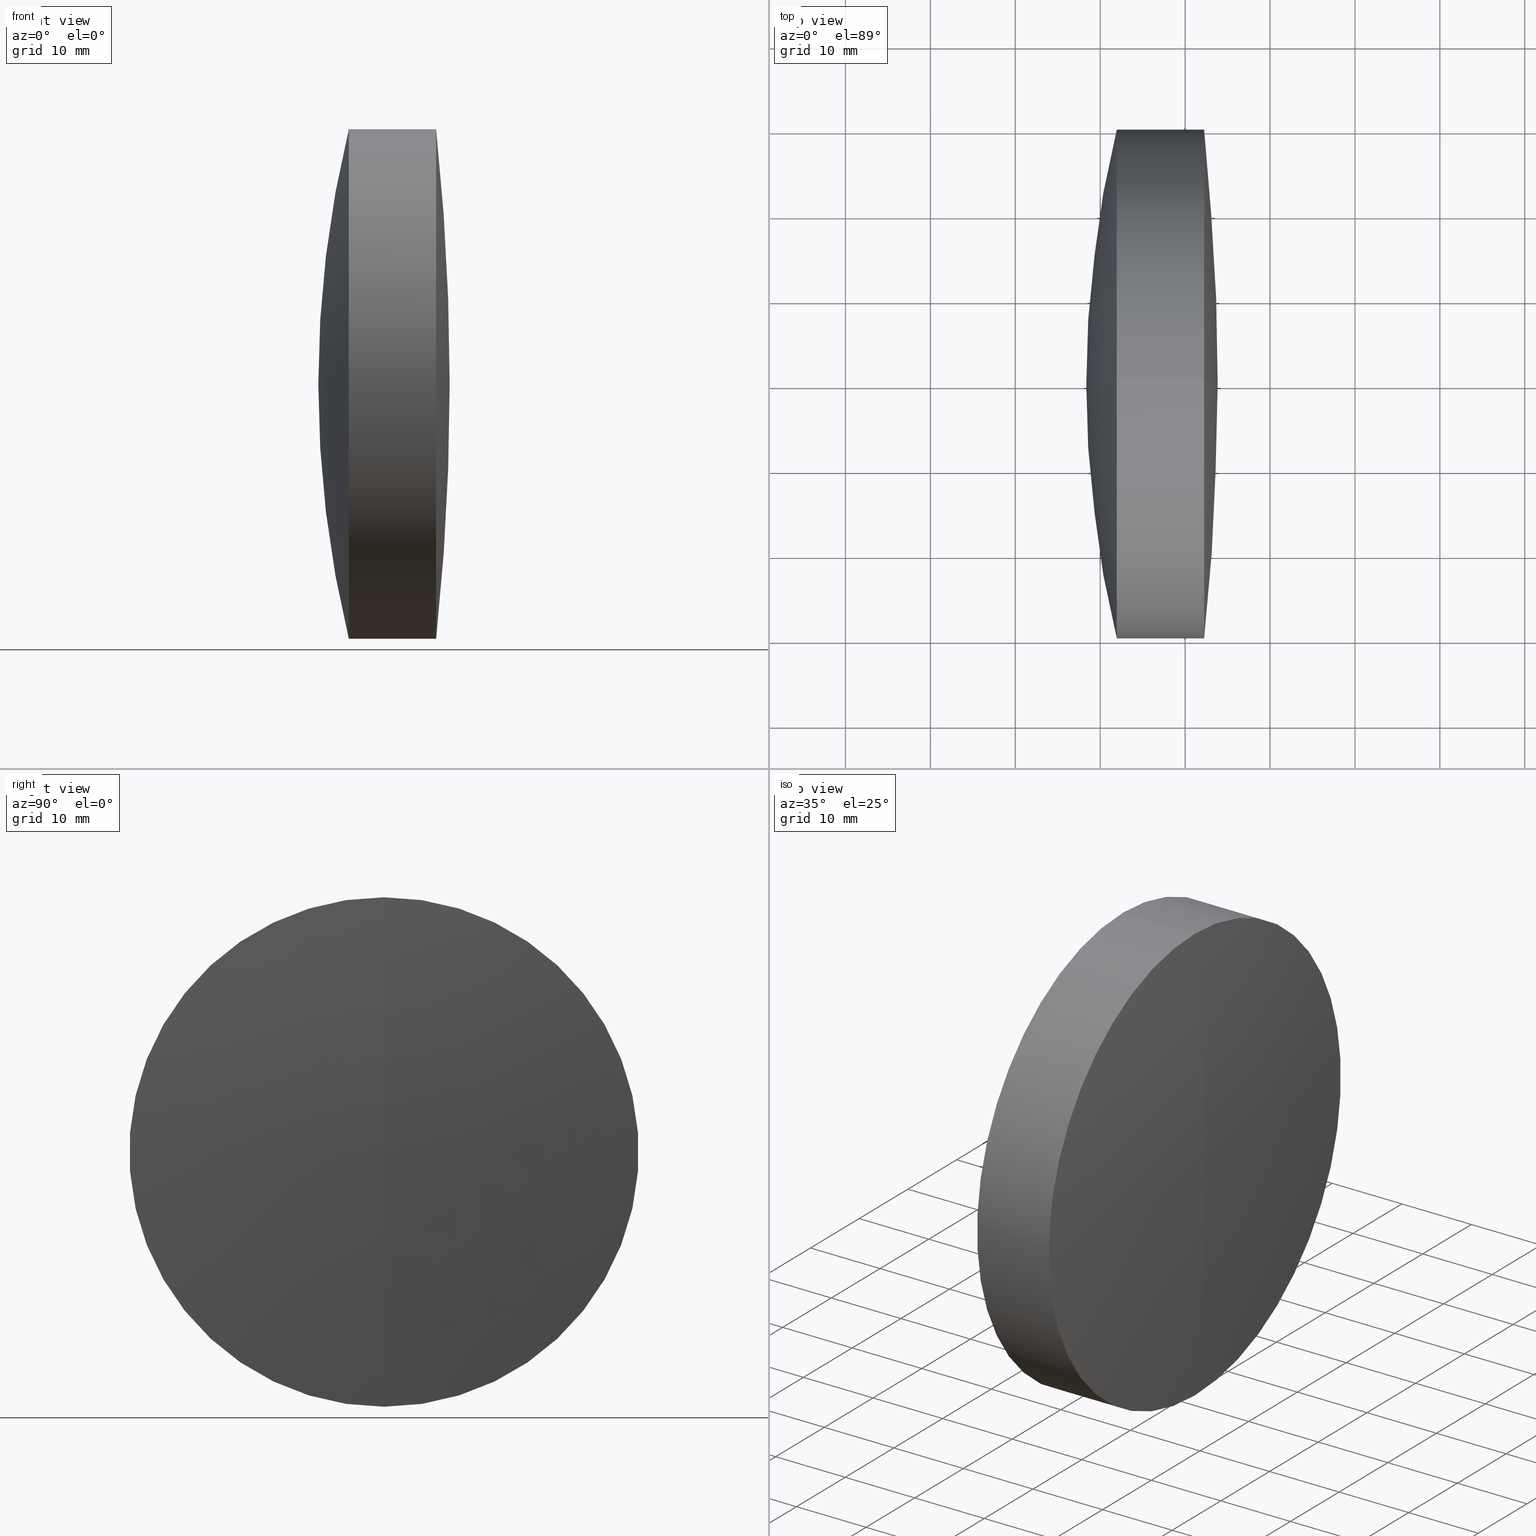
[diagram: canonical four-view strip — front | top / right | iso, engineering-drawing reading convention]
A machine part, canonical four-view strip (front | top / right | iso — engineering-drawing reading convention). The complete STEP part file that produces these views, byte-faithful:
ISO-10303-21;
HEADER;
FILE_DESCRIPTION (( 'STEP AP214' ),
    '1' );
FILE_NAME ('145097.STEP',
    '2019-05-28T02:08:53',
    ( 'user' ),
    ( '΢���й�' ),
    'SwSTEP 2.0',
    'SolidWorks 2016',
    '' );
FILE_SCHEMA (( 'AUTOMOTIVE_DESIGN' ));
ENDSEC;

DATA;
#1 = ORIENTED_EDGE ( 'NONE', *, *, #76, .T. ) ;
#2 = DIRECTION ( 'NONE',  ( 0.0000000000000000000, 0.0000000000000000000, 1.000000000000000000 ) ) ;
#3 = CARTESIAN_POINT ( 'NONE',  ( 31.03762555122546700, 0.0000000000000000000, 0.0000000000000000000 ) ) ;
#4 = DIRECTION ( 'NONE',  ( -0.0000000000000000000, -1.000000000000000000, -0.0000000000000000000 ) ) ;
#5 = CARTESIAN_POINT ( 'NONE',  ( 312.2418929441652700, 0.0000000000000000000, 0.0000000000000000000 ) ) ;
#6 = DIRECTION ( 'NONE',  ( -1.000000000000000000, -0.0000000000000000000, -0.0000000000000000000 ) ) ;
#7 = CYLINDRICAL_SURFACE ( 'NONE', #142, 30.00000000000000400 ) ;
#8 = DIRECTION ( 'NONE',  ( 0.0000000000000000000, 0.0000000000000000000, 1.000000000000000000 ) ) ;
#9 = ORIENTED_EDGE ( 'NONE', *, *, #252, .T. ) ;
#10 = CIRCLE ( 'NONE', #260, 29.99999999999997900 ) ;
#11 = ORIENTED_EDGE ( 'NONE', *, *, #83, .F. ) ;
#12 = DIRECTION ( 'NONE',  ( 0.0000000000000000000, 1.000000000000000000, 0.0000000000000000000 ) ) ;
#13 = ADVANCED_FACE ( 'NONE', ( #207 ), #265, .T. ) ;
#14 = AXIS2_PLACEMENT_3D ( 'NONE', #110, #120, #284 ) ;
#15 = CARTESIAN_POINT ( 'NONE',  ( 301.9579216428196600, 0.0000000000000000000, 0.0000000000000000000 ) ) ;
#16 = SPHERICAL_SURFACE ( 'NONE', #269, 282.7999999999999500 ) ;
#17 = CARTESIAN_POINT ( 'NONE',  ( 305.8239199956201400, 0.0000000000000000000, 0.0000000000000000000 ) ) ;
#18 = VERTEX_POINT ( 'NONE', #164 ) ;
#19 = ORIENTED_EDGE ( 'NONE', *, *, #332, .F. ) ;
#20 = DIRECTION ( 'NONE',  ( 0.0000000000000000000, 0.0000000000000000000, 1.000000000000000000 ) ) ;
#21 = VECTOR ( 'NONE', #86, 1000.000000000000000 ) ;
#22 = EDGE_LOOP ( 'NONE', ( #73, #336, #310 ) ) ;
#23 = CIRCLE ( 'NONE', #323, 94.58500000000000800 ) ;
#24 = ORIENTED_EDGE ( 'NONE', *, *, #249, .F. ) ;
#25 = AXIS2_PLACEMENT_3D ( 'NONE', #97, #220, #291 ) ;
#26 = CARTESIAN_POINT ( 'NONE',  ( 310.7076255512254200, 0.0000000000000000000, 5.791660874867620200E-015 ) ) ;
#27 = CARTESIAN_POINT ( 'NONE',  ( 312.2418929441652700, 3.673940397442056800E-015, -29.99999999999997900 ) ) ;
#28 = SURFACE_STYLE_FILL_AREA ( #259 ) ;
#29 = CARTESIAN_POINT ( 'NONE',  ( 31.03762555122546700, 0.0000000000000000000, 0.0000000000000000000 ) ) ;
#30 = AXIS2_PLACEMENT_3D ( 'NONE', #321, #319, #148 ) ;
#31 = DIRECTION ( 'NONE',  ( -1.000000000000000000, -0.0000000000000000000, -0.0000000000000000000 ) ) ;
#32 = ORIENTED_EDGE ( 'NONE', *, *, #154, .T. ) ;
#33 = ORIENTED_EDGE ( 'NONE', *, *, #335, .T. ) ;
#34 = CARTESIAN_POINT ( 'NONE',  ( 216.1226255512254100, 0.0000000000000000000, 0.0000000000000000000 ) ) ;
#35 = ORIENTED_EDGE ( 'NONE', *, *, #183, .F. ) ;
#36 = AXIS2_PLACEMENT_3D ( 'NONE', #193, #202, #194 ) ;
#37 = CIRCLE ( 'NONE', #175, 282.7999999999999500 ) ;
#38 = ORIENTED_EDGE ( 'NONE', *, *, #157, .F. ) ;
#39 = FACE_OUTER_BOUND ( 'NONE', #251, .T. ) ;
#40 = VERTEX_POINT ( 'NONE', #337 ) ;
#41 = DIRECTION ( 'NONE',  ( -1.000000000000000000, -0.0000000000000000000, -0.0000000000000000000 ) ) ;
#42 = DIRECTION ( 'NONE',  ( 0.0000000000000000000, 0.0000000000000000000, 1.000000000000000000 ) ) ;
#43 = FILL_AREA_STYLE_COLOUR ( '', #339 ) ;
#44 = CARTESIAN_POINT ( 'NONE',  ( 31.03762555122546700, 0.0000000000000000000, 0.0000000000000000000 ) ) ;
#45 = DIRECTION ( 'NONE',  ( -1.000000000000000000, -0.0000000000000000000, -0.0000000000000000000 ) ) ;
#46 = LINE ( 'NONE', #151, #21 ) ;
#47 =( GEOMETRIC_REPRESENTATION_CONTEXT ( 3 ) GLOBAL_UNCERTAINTY_ASSIGNED_CONTEXT ( ( #67 ) ) GLOBAL_UNIT_ASSIGNED_CONTEXT ( ( #215, #127, #274 ) ) REPRESENTATION_CONTEXT ( 'NONE', 'WORKASPACE' ) );
#48 = ORIENTED_EDGE ( 'NONE', *, *, #150, .T. ) ;
#49 = PRODUCT_DEFINITION_FORMATION_WITH_SPECIFIED_SOURCE ( '�κ�', '', #134, .NOT_KNOWN. ) ;
#50 = CARTESIAN_POINT ( 'NONE',  ( 301.9579216428196600, 0.0000000000000000000, 0.0000000000000000000 ) ) ;
#51 = PRESENTATION_LAYER_ASSIGNMENT (  '', '', ( #308 ) ) ;
#52 = ORIENTED_EDGE ( 'NONE', *, *, #275, .F. ) ;
#53 = DIRECTION ( 'NONE',  ( 1.000000000000000000, 0.0000000000000000000, 0.0000000000000000000 ) ) ;
#54 = DIRECTION ( 'NONE',  ( 0.0000000000000000000, 0.0000000000000000000, 1.000000000000000000 ) ) ;
#55 = ORIENTED_EDGE ( 'NONE', *, *, #312, .F. ) ;
#56 =( LENGTH_UNIT ( ) NAMED_UNIT ( * ) SI_UNIT ( .MILLI., .METRE. ) );
#57 = DIRECTION ( 'NONE',  ( 0.0000000000000000000, 0.0000000000000000000, 1.000000000000000000 ) ) ;
#58 = AXIS2_PLACEMENT_3D ( 'NONE', #327, #211, #230 ) ;
#59 = FILL_AREA_STYLE_COLOUR ( '', #324 ) ;
#60 = CIRCLE ( 'NONE', #125, 127.1330000000000200 ) ;
#61 = ORIENTED_EDGE ( 'NONE', *, *, #235, .T. ) ;
#62 = CARTESIAN_POINT ( 'NONE',  ( 124.5233095260452400, 0.0000000000000000000, 0.0000000000000000000 ) ) ;
#63 = DIRECTION ( 'NONE',  ( -1.000000000000000000, -0.0000000000000000000, -0.0000000000000000000 ) ) ;
#64 = DIRECTION ( 'NONE',  ( 0.0000000000000000000, 1.000000000000000000, 0.0000000000000000000 ) ) ;
#65 = CIRCLE ( 'NONE', #58, 94.58500000000000800 ) ;
#66 = ORIENTED_EDGE ( 'NONE', *, *, #204, .F. ) ;
#67 = UNCERTAINTY_MEASURE_WITH_UNIT (LENGTH_MEASURE( 1.000000000000000100E-005 ), #215, 'distance_accuracy_value', 'NONE');
#68 = EDGE_LOOP ( 'NONE', ( #239, #173, #209 ) ) ;
#69 = EDGE_CURVE ( 'NONE', #99, #293, #185, .T. ) ;
#70 = CARTESIAN_POINT ( 'NONE',  ( 305.8239199956201400, 3.673940397442060000E-015, -30.00000000000000400 ) ) ;
#71 = ADVANCED_FACE ( 'NONE', ( #342 ), #16, .T. ) ;
#72 = DIRECTION ( 'NONE',  ( 0.0000000000000000000, 0.0000000000000000000, 1.000000000000000000 ) ) ;
#73 = ORIENTED_EDGE ( 'NONE', *, *, #335, .F. ) ;
#74 = DIRECTION ( 'NONE',  ( 0.0000000000000000000, 0.0000000000000000000, 1.000000000000000000 ) ) ;
#75 = VERTEX_POINT ( 'NONE', #170 ) ;
#76 = EDGE_CURVE ( 'NONE', #244, #88, #65, .T. ) ;
#77 = SURFACE_STYLE_USAGE ( .BOTH. , #304 ) ;
#78 = ADVANCED_BREP_SHAPE_REPRESENTATION ( '145097', ( #89, #190, #109 ), #93 ) ;
#79 = SURFACE_STYLE_USAGE ( .BOTH. , #347 ) ;
#80 = SURFACE_STYLE_FILL_AREA ( #322 ) ;
#81 = ORIENTED_EDGE ( 'NONE', *, *, #138, .T. ) ;
#82 = EDGE_LOOP ( 'NONE', ( #283, #129, #306, #19 ) ) ;
#83 = EDGE_CURVE ( 'NONE', #91, #103, #226, .T. ) ;
#84 = ORIENTED_EDGE ( 'NONE', *, *, #183, .T. ) ;
#85 = ORIENTED_EDGE ( 'NONE', *, *, #176, .F. ) ;
#86 = DIRECTION ( 'NONE',  ( -1.000000000000000000, -0.0000000000000000000, -0.0000000000000000000 ) ) ;
#87 = FILL_AREA_STYLE ('',( #325 ) ) ;
#88 = VERTEX_POINT ( 'NONE', #182 ) ;
#89 = MANIFOLD_SOLID_BREP ( '��ת1', #302 ) ;
#90 = AXIS2_PLACEMENT_3D ( 'NONE', #15, #264, #309 ) ;
#91 = VERTEX_POINT ( 'NONE', #168 ) ;
#92 = DIRECTION ( 'NONE',  ( -0.0000000000000000000, 1.000000000000000000, 1.224646799147353200E-016 ) ) ;
#93 =( GEOMETRIC_REPRESENTATION_CONTEXT ( 3 ) GLOBAL_UNCERTAINTY_ASSIGNED_CONTEXT ( ( #296 ) ) GLOBAL_UNIT_ASSIGNED_CONTEXT ( ( #206, #238, #237 ) ) REPRESENTATION_CONTEXT ( 'NONE', 'WORKASPACE' ) );
#94 = CARTESIAN_POINT ( 'NONE',  ( 216.1226255512254100, 0.0000000000000000000, 0.0000000000000000000 ) ) ;
#95 = AXIS2_PLACEMENT_3D ( 'NONE', #29, #160, #20 ) ;
#96 = DIRECTION ( 'NONE',  ( -0.0000000000000000000, 1.000000000000000000, 1.224646799147353200E-016 ) ) ;
#97 = CARTESIAN_POINT ( 'NONE',  ( 305.8239199956201400, 0.0000000000000000000, 0.0000000000000000000 ) ) ;
#98 = DIRECTION ( 'NONE',  ( 0.0000000000000000000, -1.224646799147353200E-016, 1.000000000000000000 ) ) ;
#99 = VERTEX_POINT ( 'NONE', #236 ) ;
#100 = CARTESIAN_POINT ( 'NONE',  ( -0.5519199926577972300, 0.0000000000000000000, 0.0000000000000000000 ) ) ;
#101 = ADVANCED_FACE ( 'NONE', ( #119 ), #231, .T. ) ;
#102 = DIRECTION ( 'NONE',  ( -0.0000000000000000000, -1.000000000000000000, -0.0000000000000000000 ) ) ;
#103 = VERTEX_POINT ( 'NONE', #70 ) ;
#104 = CARTESIAN_POINT ( 'NONE',  ( 425.5006255512253700, 0.0000000000000000000, 2.406979665614141600E-015 ) ) ;
#105 = DIRECTION ( 'NONE',  ( 0.0000000000000000000, 0.0000000000000000000, 1.000000000000000000 ) ) ;
#106 = ORIENTED_EDGE ( 'NONE', *, *, #292, .F. ) ;
#107 = ADVANCED_FACE ( 'NONE', ( #136 ), #7, .T. ) ;
#108 = EDGE_CURVE ( 'NONE', #103, #18, #165, .T. ) ;
#109 = AXIS2_PLACEMENT_3D ( 'NONE', #290, #288, #53 ) ;
#110 = CARTESIAN_POINT ( 'NONE',  ( 31.03762555122546700, 0.0000000000000000000, 0.0000000000000000000 ) ) ;
#111 = DIRECTION ( 'NONE',  ( 0.0000000000000000000, 1.000000000000000000, 0.0000000000000000000 ) ) ;
#112 = EDGE_LOOP ( 'NONE', ( #106, #132, #188 ) ) ;
#113 = SHAPE_DEFINITION_REPRESENTATION ( #286, #78 ) ;
#114 = VERTEX_POINT ( 'NONE', #273 ) ;
#115 = DIRECTION ( 'NONE',  ( 0.0000000000000000000, 0.0000000000000000000, -1.000000000000000000 ) ) ;
#116 = CARTESIAN_POINT ( 'NONE',  ( 124.5233095260452400, 0.0000000000000000000, 0.0000000000000000000 ) ) ;
#117 = EDGE_CURVE ( 'NONE', #40, #18, #243, .T. ) ;
#118 = CARTESIAN_POINT ( 'NONE',  ( 216.1226255512254100, 0.0000000000000000000, 0.0000000000000000000 ) ) ;
#119 = FACE_OUTER_BOUND ( 'NONE', #272, .T. ) ;
#120 = DIRECTION ( 'NONE',  ( 0.0000000000000000000, -1.000000000000000000, 0.0000000000000000000 ) ) ;
#121 = DIRECTION ( 'NONE',  ( 0.0000000000000000000, 0.0000000000000000000, 1.000000000000000000 ) ) ;
#122 = CIRCLE ( 'NONE', #126, 29.99999999999998900 ) ;
#123 = VECTOR ( 'NONE', #184, 1000.000000000000000 ) ;
#124 = PRESENTATION_STYLE_ASSIGNMENT (( #79 ) ) ;
#125 = AXIS2_PLACEMENT_3D ( 'NONE', #219, #216, #212 ) ;
#126 = AXIS2_PLACEMENT_3D ( 'NONE', #318, #135, #54 ) ;
#127 =( NAMED_UNIT ( * ) PLANE_ANGLE_UNIT ( ) SI_UNIT ( $, .RADIAN. ) );
#128 = SPHERICAL_SURFACE ( 'NONE', #163, 127.1330000000000200 ) ;
#129 = ORIENTED_EDGE ( 'NONE', *, *, #108, .T. ) ;
#130 = STYLED_ITEM ( 'NONE', ( #145 ), #89 ) ;
#131 = DIRECTION ( 'NONE',  ( -1.000000000000000000, -0.0000000000000000000, -0.0000000000000000000 ) ) ;
#132 = ORIENTED_EDGE ( 'NONE', *, *, #157, .T. ) ;
#133 = LINE ( 'NONE', #345, #123 ) ;
#134 = PRODUCT ( '145097', '145097', '', ( #299 ) ) ;
#135 = DIRECTION ( 'NONE',  ( -1.000000000000000000, -0.0000000000000000000, -0.0000000000000000000 ) ) ;
#136 = FACE_OUTER_BOUND ( 'NONE', #82, .T. ) ;
#137 = DIRECTION ( 'NONE',  ( 0.0000000000000000000, 0.0000000000000000000, 1.000000000000000000 ) ) ;
#138 = EDGE_CURVE ( 'NONE', #18, #40, #200, .T. ) ;
#139 = CARTESIAN_POINT ( 'NONE',  ( 310.7076255512254200, 0.0000000000000000000, 5.791660874867620200E-015 ) ) ;
#140 = DIRECTION ( 'NONE',  ( 0.0000000000000000000, -1.000000000000000000, 0.0000000000000000000 ) ) ;
#141 = DIRECTION ( 'NONE',  ( 0.0000000000000000000, 0.0000000000000000000, -1.000000000000000000 ) ) ;
#142 = AXIS2_PLACEMENT_3D ( 'NONE', #62, #229, #74 ) ;
#143 =( NAMED_UNIT ( * ) PLANE_ANGLE_UNIT ( ) SI_UNIT ( $, .RADIAN. ) );
#144 = CARTESIAN_POINT ( 'NONE',  ( 312.2418929441652700, 0.0000000000000000000, 0.0000000000000000000 ) ) ;
#145 = PRESENTATION_STYLE_ASSIGNMENT (( #77 ) ) ;
#146 = ORIENTED_EDGE ( 'NONE', *, *, #138, .F. ) ;
#147 = DIRECTION ( 'NONE',  ( 0.0000000000000000000, 1.000000000000000000, 0.0000000000000000000 ) ) ;
#148 = DIRECTION ( 'NONE',  ( 0.0000000000000000000, 0.0000000000000000000, 1.000000000000000000 ) ) ;
#149 = ORIENTED_EDGE ( 'NONE', *, *, #108, .F. ) ;
#150 = EDGE_CURVE ( 'NONE', #99, #88, #46, .T. ) ;
#151 = CARTESIAN_POINT ( 'NONE',  ( -0.5519199926577972300, 0.0000000000000000000, 29.99999999999998600 ) ) ;
#152 = ORIENTED_EDGE ( 'NONE', *, *, #252, .F. ) ;
#153 = FACE_OUTER_BOUND ( 'NONE', #276, .T. ) ;
#154 = EDGE_CURVE ( 'NONE', #88, #75, #281, .T. ) ;
#155 = EDGE_LOOP ( 'NONE', ( #149, #84, #201, #146 ) ) ;
#156 = AXIS2_PLACEMENT_3D ( 'NONE', #118, #12, #121 ) ;
#157 = EDGE_CURVE ( 'NONE', #114, #293, #37, .T. ) ;
#158 = DIRECTION ( 'NONE',  ( 0.0000000000000000000, 0.0000000000000000000, 1.000000000000000000 ) ) ;
#159 = ORIENTED_EDGE ( 'NONE', *, *, #150, .F. ) ;
#160 = DIRECTION ( 'NONE',  ( 0.0000000000000000000, 1.000000000000000000, 0.0000000000000000000 ) ) ;
#161 = VECTOR ( 'NONE', #257, 1000.000000000000000 ) ;
#162 = DIRECTION ( 'NONE',  ( 0.0000000000000000000, 1.000000000000000000, -0.0000000000000000000 ) ) ;
#163 = AXIS2_PLACEMENT_3D ( 'NONE', #330, #4, #115 ) ;
#164 = CARTESIAN_POINT ( 'NONE',  ( 301.9579216428196600, 0.0000000000000000000, -30.00000000000000000 ) ) ;
#165 = LINE ( 'NONE', #225, #233 ) ;
#166 = CARTESIAN_POINT ( 'NONE',  ( 425.5006255512253700, 0.0000000000000000000, 2.406979665614141600E-015 ) ) ;
#167 = CIRCLE ( 'NONE', #303, 94.58500000000000800 ) ;
#168 = CARTESIAN_POINT ( 'NONE',  ( 305.8239199956201400, 0.0000000000000000000, 30.00000000000000400 ) ) ;
#169 = CARTESIAN_POINT ( 'NONE',  ( 216.1226255512254100, 0.0000000000000000000, 0.0000000000000000000 ) ) ;
#170 = CARTESIAN_POINT ( 'NONE',  ( 305.8239199956201400, 3.673940397442058400E-015, -29.99999999999998900 ) ) ;
#171 = AXIS2_PLACEMENT_3D ( 'NONE', #104, #102, #247 ) ;
#172 = ADVANCED_FACE ( 'NONE', ( #181 ), #250, .T. ) ;
#173 = ORIENTED_EDGE ( 'NONE', *, *, #275, .T. ) ;
#174 = PRESENTATION_LAYER_ASSIGNMENT (  '', '', ( #258 ) ) ;
#175 = AXIS2_PLACEMENT_3D ( 'NONE', #44, #92, #346 ) ;
#176 = EDGE_CURVE ( 'NONE', #75, #88, #122, .T. ) ;
#177 = CIRCLE ( 'NONE', #232, 30.00000000000000400 ) ;
#178 = SURFACE_STYLE_FILL_AREA ( #87 ) ;
#179 = CIRCLE ( 'NONE', #36, 94.58500000000000800 ) ;
#180 = AXIS2_PLACEMENT_3D ( 'NONE', #50, #45, #223 ) ;
#181 = FACE_OUTER_BOUND ( 'NONE', #278, .T. ) ;
#182 = CARTESIAN_POINT ( 'NONE',  ( 305.8239199956201400, 0.0000000000000000000, 29.99999999999998900 ) ) ;
#183 = EDGE_CURVE ( 'NONE', #103, #91, #177, .T. ) ;
#184 = DIRECTION ( 'NONE',  ( -1.000000000000000000, -0.0000000000000000000, -0.0000000000000000000 ) ) ;
#185 = CIRCLE ( 'NONE', #192, 29.99999999999997900 ) ;
#186 = ADVANCED_FACE ( 'NONE', ( #248 ), #128, .T. ) ;
#187 = CARTESIAN_POINT ( 'NONE',  ( 124.5233095260452400, 0.0000000000000000000, 30.00000000000000400 ) ) ;
#188 = ORIENTED_EDGE ( 'NONE', *, *, #69, .F. ) ;
#189 = FACE_OUTER_BOUND ( 'NONE', #316, .T. ) ;
#190 = MANIFOLD_SOLID_BREP ( '��ת3', #340 ) ;
#191 = ADVANCED_FACE ( 'NONE', ( #333 ), #315, .F. ) ;
#192 = AXIS2_PLACEMENT_3D ( 'NONE', #5, #205, #317 ) ;
#193 = CARTESIAN_POINT ( 'NONE',  ( 216.1226255512254100, 0.0000000000000000000, 0.0000000000000000000 ) ) ;
#194 = DIRECTION ( 'NONE',  ( 0.0000000000000000000, -1.224646799147353200E-016, 1.000000000000000000 ) ) ;
#195 = UNCERTAINTY_MEASURE_WITH_UNIT (LENGTH_MEASURE( 1.000000000000000100E-005 ), #280, 'distance_accuracy_value', 'NONE');
#196 = COLOUR_RGB ( '',1.000000000000000000, 1.000000000000000000, 1.000000000000000000 ) ;
#197 = LINE ( 'NONE', #187, #161 ) ;
#198 = MECHANICAL_DESIGN_GEOMETRIC_PRESENTATION_REPRESENTATION (  '', ( #130 ), #47 ) ;
#199 = PRODUCT_DEFINITION_CONTEXT ( 'detailed design', #307, 'design' ) ;
#200 = CIRCLE ( 'NONE', #90, 30.00000000000000400 ) ;
#201 = ORIENTED_EDGE ( 'NONE', *, *, #332, .T. ) ;
#202 = DIRECTION ( 'NONE',  ( -0.0000000000000000000, 1.000000000000000000, 1.224646799147353200E-016 ) ) ;
#203 = DIRECTION ( 'NONE',  ( 0.0000000000000000000, 0.0000000000000000000, 1.000000000000000000 ) ) ;
#204 = EDGE_CURVE ( 'NONE', #305, #103, #179, .T. ) ;
#205 = DIRECTION ( 'NONE',  ( -1.000000000000000000, -0.0000000000000000000, -0.0000000000000000000 ) ) ;
#206 =( LENGTH_UNIT ( ) NAMED_UNIT ( * ) SI_UNIT ( .MILLI., .METRE. ) );
#207 = FACE_OUTER_BOUND ( 'NONE', #155, .T. ) ;
#208 = CARTESIAN_POINT ( 'NONE',  ( 305.8239199956201400, 0.0000000000000000000, 0.0000000000000000000 ) ) ;
#209 = ORIENTED_EDGE ( 'NONE', *, *, #176, .T. ) ;
#210 = FACE_OUTER_BOUND ( 'NONE', #68, .T. ) ;
#211 = DIRECTION ( 'NONE',  ( 0.0000000000000000000, -1.000000000000000000, 0.0000000000000000000 ) ) ;
#212 = DIRECTION ( 'NONE',  ( 0.0000000000000000000, 1.224646799147353200E-016, -1.000000000000000000 ) ) ;
#213 = PRESENTATION_LAYER_ASSIGNMENT (  '', '', ( #130 ) ) ;
#214 = ORIENTED_EDGE ( 'NONE', *, *, #235, .F. ) ;
#215 =( LENGTH_UNIT ( ) NAMED_UNIT ( * ) SI_UNIT ( .MILLI., .METRE. ) );
#216 = DIRECTION ( 'NONE',  ( 0.0000000000000000000, -1.000000000000000000, -1.224646799147353200E-016 ) ) ;
#217 = VERTEX_POINT ( 'NONE', #246 ) ;
#218 = SPHERICAL_SURFACE ( 'NONE', #156, 94.58500000000000800 ) ;
#219 = CARTESIAN_POINT ( 'NONE',  ( 425.5006255512253700, 0.0000000000000000000, 2.406979665614141600E-015 ) ) ;
#220 = DIRECTION ( 'NONE',  ( -1.000000000000000000, -0.0000000000000000000, -0.0000000000000000000 ) ) ;
#221 = CYLINDRICAL_SURFACE ( 'NONE', #30, 29.99999999999998600 ) ;
#222 = PRODUCT_RELATED_PRODUCT_CATEGORY ( 'part', '', ( #134 ) ) ;
#223 = DIRECTION ( 'NONE',  ( 0.0000000000000000000, 0.0000000000000000000, 1.000000000000000000 ) ) ;
#224 = AXIS2_PLACEMENT_3D ( 'NONE', #116, #31, #42 ) ;
#225 = CARTESIAN_POINT ( 'NONE',  ( 124.5233095260452400, 3.673940397442060000E-015, -30.00000000000000400 ) ) ;
#226 = CIRCLE ( 'NONE', #25, 30.00000000000000400 ) ;
#227 = CYLINDRICAL_SURFACE ( 'NONE', #314, 29.99999999999998600 ) ;
#228 = ORIENTED_EDGE ( 'NONE', *, *, #204, .T. ) ;
#229 = DIRECTION ( 'NONE',  ( -1.000000000000000000, -0.0000000000000000000, -0.0000000000000000000 ) ) ;
#230 = DIRECTION ( 'NONE',  ( 0.0000000000000000000, 0.0000000000000000000, -1.000000000000000000 ) ) ;
#231 = SPHERICAL_SURFACE ( 'NONE', #95, 282.7999999999999500 ) ;
#232 = AXIS2_PLACEMENT_3D ( 'NONE', #17, #41, #2 ) ;
#233 = VECTOR ( 'NONE', #131, 1000.000000000000000 ) ;
#234 = APPLICATION_PROTOCOL_DEFINITION ( 'draft international standard', 'automotive_design', 1998, #263 ) ;
#235 = EDGE_CURVE ( 'NONE', #293, #75, #133, .T. ) ;
#236 = CARTESIAN_POINT ( 'NONE',  ( 312.2418929441652700, 0.0000000000000000000, 29.99999999999997900 ) ) ;
#237 =( NAMED_UNIT ( * ) SI_UNIT ( $, .STERADIAN. ) SOLID_ANGLE_UNIT ( ) );
#238 =( NAMED_UNIT ( * ) PLANE_ANGLE_UNIT ( ) SI_UNIT ( $, .RADIAN. ) );
#239 = ORIENTED_EDGE ( 'NONE', *, *, #76, .F. ) ;
#240 = DIRECTION ( 'NONE',  ( -1.000000000000000000, -0.0000000000000000000, -0.0000000000000000000 ) ) ;
#241 = MECHANICAL_DESIGN_GEOMETRIC_PRESENTATION_REPRESENTATION (  '', ( #258 ), #320 ) ;
#242 = MECHANICAL_DESIGN_GEOMETRIC_PRESENTATION_REPRESENTATION (  '', ( #308 ), #253 ) ;
#243 = CIRCLE ( 'NONE', #180, 30.00000000000000400 ) ;
#244 = VERTEX_POINT ( 'NONE', #139 ) ;
#245 = ORIENTED_EDGE ( 'NONE', *, *, #292, .T. ) ;
#246 = CARTESIAN_POINT ( 'NONE',  ( 298.3676255512253300, 0.0000000000000000000, -5.377671410185881900E-015 ) ) ;
#247 = DIRECTION ( 'NONE',  ( 0.0000000000000000000, 0.0000000000000000000, -1.000000000000000000 ) ) ;
#248 = FACE_OUTER_BOUND ( 'NONE', #22, .T. ) ;
#249 = EDGE_CURVE ( 'NONE', #18, #217, #334, .T. ) ;
#250 = SPHERICAL_SURFACE ( 'NONE', #171, 127.1330000000000200 ) ;
#251 = EDGE_LOOP ( 'NONE', ( #214, #9, #48, #85 ) ) ;
#252 = EDGE_CURVE ( 'NONE', #293, #99, #10, .T. ) ;
#253 =( GEOMETRIC_REPRESENTATION_CONTEXT ( 3 ) GLOBAL_UNCERTAINTY_ASSIGNED_CONTEXT ( ( #344 ) ) GLOBAL_UNIT_ASSIGNED_CONTEXT ( ( #56, #143, #313 ) ) REPRESENTATION_CONTEXT ( 'NONE', 'WORKASPACE' ) );
#254 = ORIENTED_EDGE ( 'NONE', *, *, #69, .T. ) ;
#255 = SPHERICAL_SURFACE ( 'NONE', #279, 94.58500000000000800 ) ;
#256 = SURFACE_SIDE_STYLE ('',( #28 ) ) ;
#257 = DIRECTION ( 'NONE',  ( -1.000000000000000000, -0.0000000000000000000, -0.0000000000000000000 ) ) ;
#258 = STYLED_ITEM ( 'NONE', ( #289 ), #78 ) ;
#259 = FILL_AREA_STYLE ('',( #43 ) ) ;
#260 = AXIS2_PLACEMENT_3D ( 'NONE', #144, #6, #311 ) ;
#261 = SPHERICAL_SURFACE ( 'NONE', #341, 94.58500000000000800 ) ;
#262 = ORIENTED_EDGE ( 'NONE', *, *, #312, .T. ) ;
#263 = APPLICATION_CONTEXT ( 'automotive_design' ) ;
#264 = DIRECTION ( 'NONE',  ( -1.000000000000000000, -0.0000000000000000000, -0.0000000000000000000 ) ) ;
#265 = CYLINDRICAL_SURFACE ( 'NONE', #224, 30.00000000000000400 ) ;
#266 =( NAMED_UNIT ( * ) SI_UNIT ( $, .STERADIAN. ) SOLID_ANGLE_UNIT ( ) );
#267 = EDGE_LOOP ( 'NONE', ( #66, #262, #35 ) ) ;
#268 =( NAMED_UNIT ( * ) PLANE_ANGLE_UNIT ( ) SI_UNIT ( $, .RADIAN. ) );
#269 = AXIS2_PLACEMENT_3D ( 'NONE', #3, #111, #203 ) ;
#270 = ADVANCED_FACE ( 'NONE', ( #39 ), #221, .T. ) ;
#271 = ADVANCED_FACE ( 'NONE', ( #282 ), #255, .T. ) ;
#272 = EDGE_LOOP ( 'NONE', ( #38, #245, #152 ) ) ;
#273 = CARTESIAN_POINT ( 'NONE',  ( 313.8376255512254100, 0.0000000000000000000, 1.731650573994357100E-014 ) ) ;
#274 =( NAMED_UNIT ( * ) SI_UNIT ( $, .STERADIAN. ) SOLID_ANGLE_UNIT ( ) );
#275 = EDGE_CURVE ( 'NONE', #244, #75, #167, .T. ) ;
#276 = EDGE_LOOP ( 'NONE', ( #55, #228, #11 ) ) ;
#277 = AXIS2_PLACEMENT_3D ( 'NONE', #329, #295, #137 ) ;
#278 = EDGE_LOOP ( 'NONE', ( #81, #33, #24 ) ) ;
#279 = AXIS2_PLACEMENT_3D ( 'NONE', #34, #147, #57 ) ;
#280 =( LENGTH_UNIT ( ) NAMED_UNIT ( * ) SI_UNIT ( .MILLI., .METRE. ) );
#281 = CIRCLE ( 'NONE', #331, 29.99999999999998900 ) ;
#282 = FACE_OUTER_BOUND ( 'NONE', #267, .T. ) ;
#283 = ORIENTED_EDGE ( 'NONE', *, *, #83, .T. ) ;
#284 = DIRECTION ( 'NONE',  ( 0.0000000000000000000, 0.0000000000000000000, -1.000000000000000000 ) ) ;
#285 = CARTESIAN_POINT ( 'NONE',  ( 216.1226255512254100, 0.0000000000000000000, 0.0000000000000000000 ) ) ;
#286 = PRODUCT_DEFINITION_SHAPE ( 'NONE', 'NONE',  #338 ) ;
#287 = SURFACE_STYLE_USAGE ( .BOTH. , #256 ) ;
#288 = DIRECTION ( 'NONE',  ( 0.0000000000000000000, 0.0000000000000000000, 1.000000000000000000 ) ) ;
#289 = PRESENTATION_STYLE_ASSIGNMENT (( #287 ) ) ;
#290 = CARTESIAN_POINT ( 'NONE',  ( 0.0000000000000000000, 0.0000000000000000000, 0.0000000000000000000 ) ) ;
#291 = DIRECTION ( 'NONE',  ( 0.0000000000000000000, 0.0000000000000000000, 1.000000000000000000 ) ) ;
#292 = EDGE_CURVE ( 'NONE', #114, #99, #294, .T. ) ;
#293 = VERTEX_POINT ( 'NONE', #27 ) ;
#294 = CIRCLE ( 'NONE', #14, 282.7999999999999500 ) ;
#295 = DIRECTION ( 'NONE',  ( 0.0000000000000000000, 1.000000000000000000, 0.0000000000000000000 ) ) ;
#296 = UNCERTAINTY_MEASURE_WITH_UNIT (LENGTH_MEASURE( 1.000000000000000100E-005 ), #206, 'distance_accuracy_value', 'NONE');
#297 = AXIS2_PLACEMENT_3D ( 'NONE', #166, #162, #158 ) ;
#298 = ADVANCED_FACE ( 'NONE', ( #189 ), #227, .T. ) ;
#299 = PRODUCT_CONTEXT ( 'NONE', #263, 'mechanical' ) ;
#300 = ADVANCED_FACE ( 'NONE', ( #210 ), #261, .F. ) ;
#301 = ORIENTED_EDGE ( 'NONE', *, *, #154, .F. ) ;
#302 = CLOSED_SHELL ( 'NONE', ( #328, #107, #172, #186, #13, #271 ) ) ;
#303 = AXIS2_PLACEMENT_3D ( 'NONE', #94, #96, #98 ) ;
#304 = SURFACE_SIDE_STYLE ('',( #80 ) ) ;
#305 = VERTEX_POINT ( 'NONE', #26 ) ;
#306 = ORIENTED_EDGE ( 'NONE', *, *, #117, .F. ) ;
#307 = APPLICATION_CONTEXT ( 'automotive_design' ) ;
#308 = STYLED_ITEM ( 'NONE', ( #124 ), #190 ) ;
#309 = DIRECTION ( 'NONE',  ( 0.0000000000000000000, 0.0000000000000000000, 1.000000000000000000 ) ) ;
#310 = ORIENTED_EDGE ( 'NONE', *, *, #249, .T. ) ;
#311 = DIRECTION ( 'NONE',  ( 0.0000000000000000000, 0.0000000000000000000, 1.000000000000000000 ) ) ;
#312 = EDGE_CURVE ( 'NONE', #305, #91, #23, .T. ) ;
#313 =( NAMED_UNIT ( * ) SI_UNIT ( $, .STERADIAN. ) SOLID_ANGLE_UNIT ( ) );
#314 = AXIS2_PLACEMENT_3D ( 'NONE', #100, #63, #105 ) ;
#315 = SPHERICAL_SURFACE ( 'NONE', #277, 94.58500000000000800 ) ;
#316 = EDGE_LOOP ( 'NONE', ( #254, #61, #301, #159 ) ) ;
#317 = DIRECTION ( 'NONE',  ( 0.0000000000000000000, 0.0000000000000000000, 1.000000000000000000 ) ) ;
#318 = CARTESIAN_POINT ( 'NONE',  ( 305.8239199956201400, 0.0000000000000000000, 0.0000000000000000000 ) ) ;
#319 = DIRECTION ( 'NONE',  ( -1.000000000000000000, -0.0000000000000000000, -0.0000000000000000000 ) ) ;
#320 =( GEOMETRIC_REPRESENTATION_CONTEXT ( 3 ) GLOBAL_UNCERTAINTY_ASSIGNED_CONTEXT ( ( #195 ) ) GLOBAL_UNIT_ASSIGNED_CONTEXT ( ( #280, #268, #266 ) ) REPRESENTATION_CONTEXT ( 'NONE', 'WORKASPACE' ) );
#321 = CARTESIAN_POINT ( 'NONE',  ( -0.5519199926577972300, 0.0000000000000000000, 0.0000000000000000000 ) ) ;
#322 = FILL_AREA_STYLE ('',( #59 ) ) ;
#323 = AXIS2_PLACEMENT_3D ( 'NONE', #169, #140, #141 ) ;
#324 = COLOUR_RGB ( '',1.000000000000000000, 1.000000000000000000, 1.000000000000000000 ) ;
#325 = FILL_AREA_STYLE_COLOUR ( '', #196 ) ;
#326 = APPLICATION_PROTOCOL_DEFINITION ( 'draft international standard', 'automotive_design', 1998, #307 ) ;
#327 = CARTESIAN_POINT ( 'NONE',  ( 216.1226255512254100, 0.0000000000000000000, 0.0000000000000000000 ) ) ;
#328 = ADVANCED_FACE ( 'NONE', ( #153 ), #218, .T. ) ;
#329 = CARTESIAN_POINT ( 'NONE',  ( 216.1226255512254100, 0.0000000000000000000, 0.0000000000000000000 ) ) ;
#330 = CARTESIAN_POINT ( 'NONE',  ( 425.5006255512253700, 0.0000000000000000000, 2.406979665614141600E-015 ) ) ;
#331 = AXIS2_PLACEMENT_3D ( 'NONE', #208, #240, #72 ) ;
#332 = EDGE_CURVE ( 'NONE', #91, #40, #197, .T. ) ;
#333 = FACE_OUTER_BOUND ( 'NONE', #343, .T. ) ;
#334 = CIRCLE ( 'NONE', #297, 127.1330000000000200 ) ;
#335 = EDGE_CURVE ( 'NONE', #40, #217, #60, .T. ) ;
#336 = ORIENTED_EDGE ( 'NONE', *, *, #117, .T. ) ;
#337 = CARTESIAN_POINT ( 'NONE',  ( 301.9579216428196600, -3.673940397442059200E-015, 30.00000000000000000 ) ) ;
#338 = PRODUCT_DEFINITION ( 'δ֪', '', #49, #199 ) ;
#339 = COLOUR_RGB ( '',1.000000000000000000, 1.000000000000000000, 1.000000000000000000 ) ;
#340 = CLOSED_SHELL ( 'NONE', ( #71, #298, #300, #191, #270, #101 ) ) ;
#341 = AXIS2_PLACEMENT_3D ( 'NONE', #285, #64, #8 ) ;
#342 = FACE_OUTER_BOUND ( 'NONE', #112, .T. ) ;
#343 = EDGE_LOOP ( 'NONE', ( #52, #1, #32 ) ) ;
#344 = UNCERTAINTY_MEASURE_WITH_UNIT (LENGTH_MEASURE( 1.000000000000000100E-005 ), #56, 'distance_accuracy_value', 'NONE');
#345 = CARTESIAN_POINT ( 'NONE',  ( -0.5519199926577972300, 3.673940397442057600E-015, -29.99999999999998600 ) ) ;
#346 = DIRECTION ( 'NONE',  ( 0.0000000000000000000, -1.224646799147353200E-016, 1.000000000000000000 ) ) ;
#347 = SURFACE_SIDE_STYLE ('',( #178 ) ) ;
ENDSEC;
END-ISO-10303-21;
